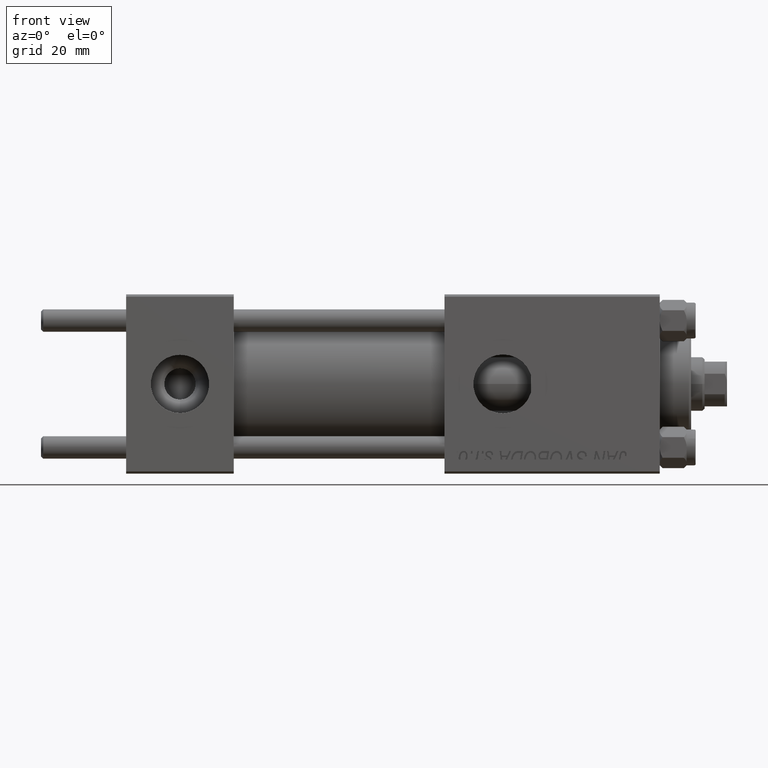
[diagram: clean part render]
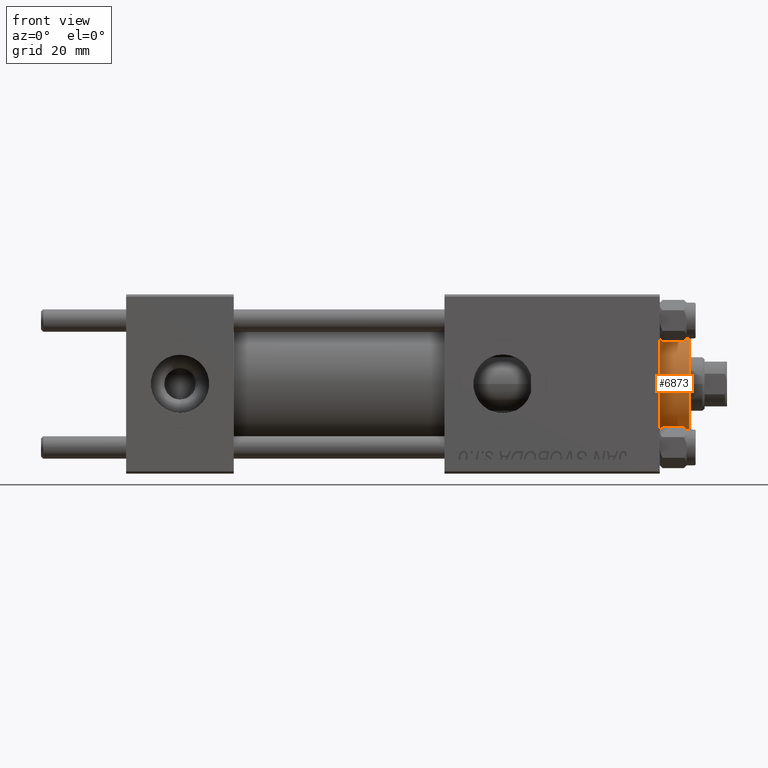
[diagram: same view with one face highlighted and labeled with its STEP entity id]
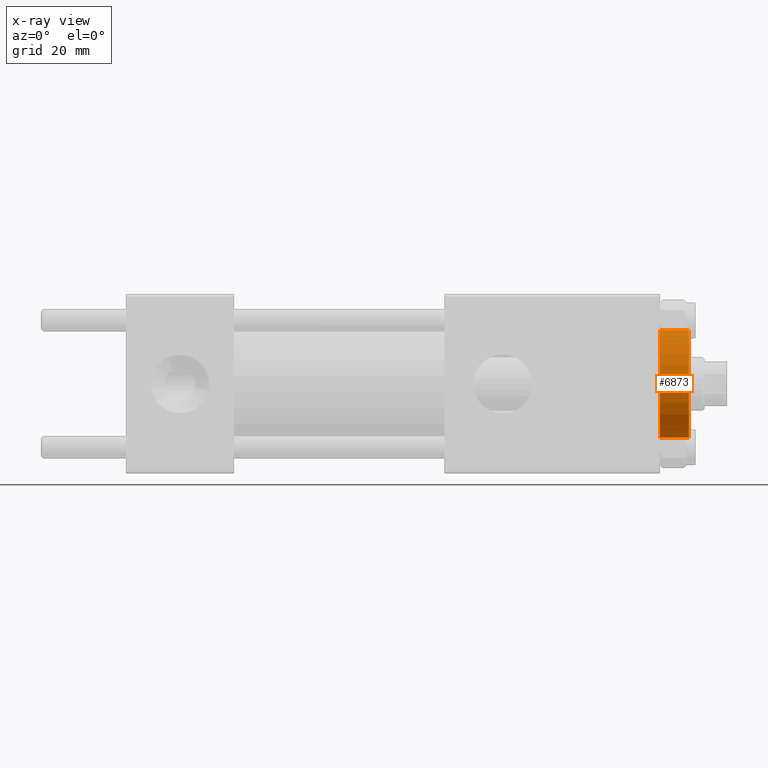
[diagram: x-ray of the same camera — body ghosted, the highlighted face saturated]
A machine part, front view. The second image highlights one B-rep face of the part: STEP entity #6873.
The next image is the same camera in x-ray: the body ghosted, the highlighted face saturated — about 0% of this face is hidden behind the body in this view.
In plain terms, the highlighted cylindrical surface (partial cylindrical patch) has radius 12 mm, axis along (-1, -0, 0).
Its self-contained STEP definition (entity closure, byte-faithful):
#547 = LINE ( 'NONE', #12898, #46074 ) ;
#711 = VECTOR ( 'NONE', #7352, 1000.000000000000000 ) ;
#3791 = VERTEX_POINT ( 'NONE', #17466 ) ;
#3982 = CARTESIAN_POINT ( 'NONE',  ( 12.00000000000000178, 1.469576158976824144E-15, 35.19999999999999574 ) ) ;
#4648 = AXIS2_PLACEMENT_3D ( 'NONE', #7391, #18725, #22997 ) ;
#6873 = ADVANCED_FACE ( 'NONE', ( #48271 ), #37194, .T. ) ;
#7352 = DIRECTION ( 'NONE',  ( -0.000000000000000000, -0.000000000000000000, -1.000000000000000000 ) ) ;
#7391 = CARTESIAN_POINT ( 'NONE',  ( 0.000000000000000000, 0.000000000000000000, 28.69999999999999929 ) ) ;
#7548 = EDGE_CURVE ( 'NONE', #44968, #21252, #49143, .T. ) ;
#8541 = EDGE_CURVE ( 'NONE', #32360, #44968, #29563, .T. ) ;
#12898 = CARTESIAN_POINT ( 'NONE',  ( 12.00000000000000178, 1.469576158976824144E-15, 35.70000000000000284 ) ) ;
#14377 = AXIS2_PLACEMENT_3D ( 'NONE', #49270, #33657, #22091 ) ;
#15164 = CARTESIAN_POINT ( 'NONE',  ( -12.00000000000000178, 0.000000000000000000, 35.70000000000000284 ) ) ;
#16417 = DIRECTION ( 'NONE',  ( -0.000000000000000000, -0.000000000000000000, -1.000000000000000000 ) ) ;
#17466 = CARTESIAN_POINT ( 'NONE',  ( 12.00000000000000178, 1.469576158976824144E-15, 28.69999999999999929 ) ) ;
#18725 = DIRECTION ( 'NONE',  ( 0.000000000000000000, 0.000000000000000000, 1.000000000000000000 ) ) ;
#20718 = ORIENTED_EDGE ( 'NONE', *, *, #21354, .F. ) ;
#21252 = VERTEX_POINT ( 'NONE', #26509 ) ;
#21354 = EDGE_CURVE ( 'NONE', #32360, #3791, #547, .T. ) ;
#22091 = DIRECTION ( 'NONE',  ( -1.000000000000000000, 0.000000000000000000, 0.000000000000000000 ) ) ;
#22997 = DIRECTION ( 'NONE',  ( 1.000000000000000000, 0.000000000000000000, 0.000000000000000000 ) ) ;
#24782 = CIRCLE ( 'NONE', #4648, 12.00000000000000178 ) ;
#26509 = CARTESIAN_POINT ( 'NONE',  ( -12.00000000000000178, 0.000000000000000000, 28.69999999999999929 ) ) ;
#29563 = CIRCLE ( 'NONE', #40823, 12.00000000000000178 ) ;
#32360 = VERTEX_POINT ( 'NONE', #3982 ) ;
#32877 = EDGE_CURVE ( 'NONE', #21252, #3791, #24782, .T. ) ;
#33657 = DIRECTION ( 'NONE',  ( -0.000000000000000000, -0.000000000000000000, -1.000000000000000000 ) ) ;
#35659 = EDGE_LOOP ( 'NONE', ( #20718, #37746, #36988, #46849 ) ) ;
#36988 = ORIENTED_EDGE ( 'NONE', *, *, #7548, .T. ) ;
#37194 = CYLINDRICAL_SURFACE ( 'NONE', #14377, 12.00000000000000178 ) ;
#37746 = ORIENTED_EDGE ( 'NONE', *, *, #8541, .T. ) ;
#39613 = CARTESIAN_POINT ( 'NONE',  ( -12.00000000000000178, 0.000000000000000000, 35.19999999999999574 ) ) ;
#40823 = AXIS2_PLACEMENT_3D ( 'NONE', #41679, #48974, #46204 ) ;
#41679 = CARTESIAN_POINT ( 'NONE',  ( 0.000000000000000000, 0.000000000000000000, 35.19999999999999574 ) ) ;
#44968 = VERTEX_POINT ( 'NONE', #39613 ) ;
#46074 = VECTOR ( 'NONE', #16417, 1000.000000000000000 ) ;
#46204 = DIRECTION ( 'NONE',  ( 1.000000000000000000, 0.000000000000000000, 0.000000000000000000 ) ) ;
#46849 = ORIENTED_EDGE ( 'NONE', *, *, #32877, .T. ) ;
#48271 = FACE_OUTER_BOUND ( 'NONE', #35659, .T. ) ;
#48974 = DIRECTION ( 'NONE',  ( 0.000000000000000000, 0.000000000000000000, -1.000000000000000000 ) ) ;
#49143 = LINE ( 'NONE', #15164, #711 ) ;
#49270 = CARTESIAN_POINT ( 'NONE',  ( 0.000000000000000000, 0.000000000000000000, 35.70000000000000284 ) ) ;